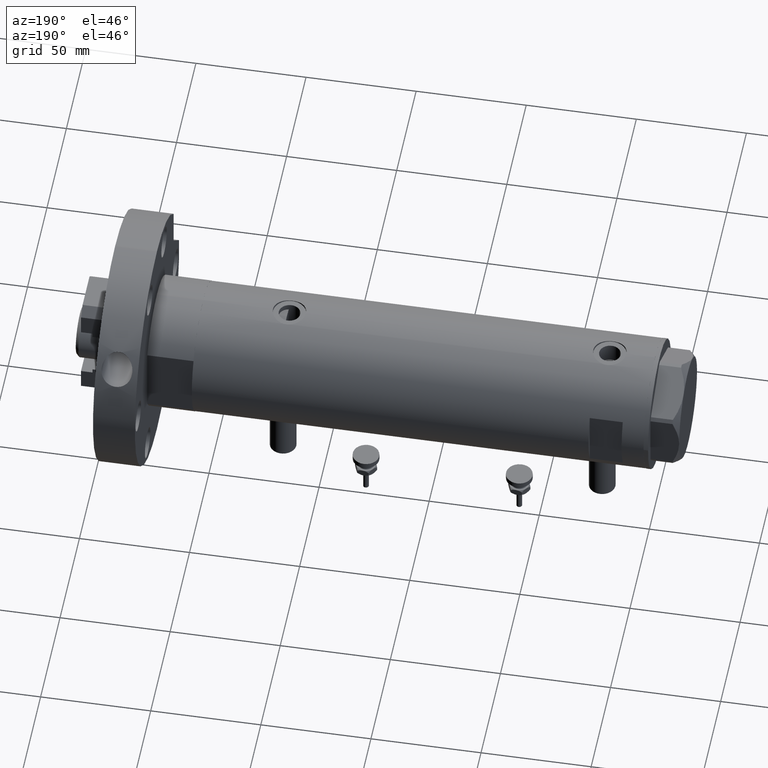
[diagram: clean part render]
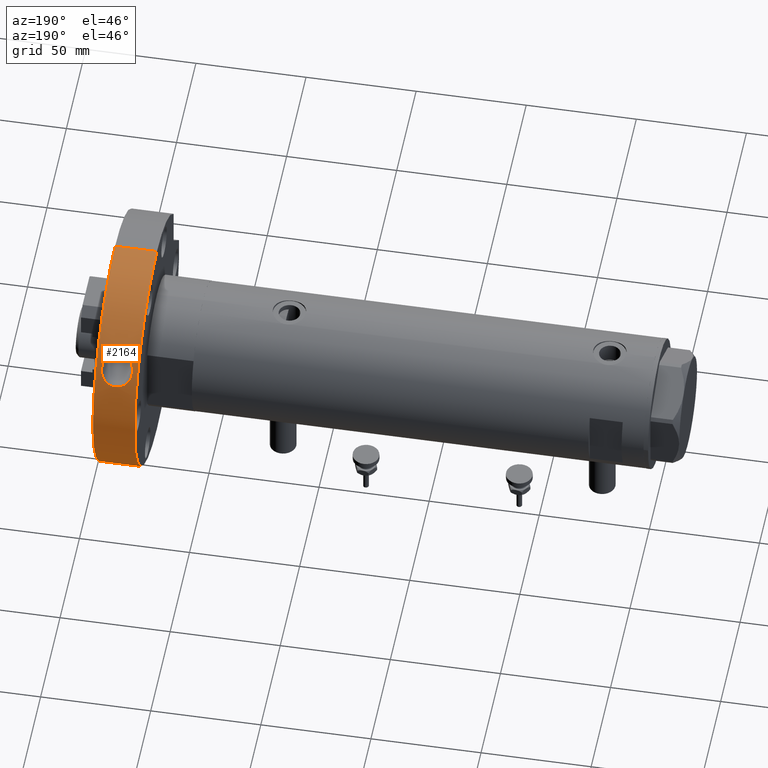
[diagram: same view with one face highlighted and labeled with its STEP entity id]
A machine part, auxiliary view. The second image highlights one B-rep face of the part: STEP entity #2164.
In plain terms, the highlighted cylindrical surface (partial cylindrical patch) has radius 57 mm, axis along (-1, -0, 0).
Its self-contained STEP definition (entity closure, byte-faithful):
#19 = CARTESIAN_POINT ( 'NONE',  ( 30.53995107737558001, -48.13067431506262750, 2.699709609212773032 ) ) ;
#20 = CARTESIAN_POINT ( 'NONE',  ( -57.00000000000000000, 0.000000000000000000, 19.00000000000000000 ) ) ;
#55 = CARTESIAN_POINT ( 'NONE',  ( 27.34814692522247981, -50.01136423115338658, 16.34589020612161292 ) ) ;
#211 = ORIENTED_EDGE ( 'NONE', *, *, #2208, .T. ) ;
#393 = CARTESIAN_POINT ( 'NONE',  ( 22.85873534068688429, -52.21656212836945343, 5.807502528299100852 ) ) ;
#513 = CARTESIAN_POINT ( 'NONE',  ( 35.71780161718379532, -44.42120325873273856, 8.257231265096653061 ) ) ;
#529 = DIRECTION ( 'NONE',  ( 0.000000000000000000, 0.000000000000000000, 1.000000000000000000 ) ) ;
#549 = CARTESIAN_POINT ( 'NONE',  ( 22.60549821113150415, -52.32623962976818177, 12.74884988705218447 ) ) ;
#553 = CARTESIAN_POINT ( 'NONE',  ( 35.54753094409378633, -44.55774354146507932, 11.51246087786898009 ) ) ;
#597 = CARTESIAN_POINT ( 'NONE',  ( 22.83988462326767888, -52.22480113453154615, 13.16198180661147354 ) ) ;
#601 = CARTESIAN_POINT ( 'NONE',  ( 35.39057712594161842, -44.68240000125437206, 7.061413026461376141 ) ) ;
#643 = CARTESIAN_POINT ( 'NONE',  ( 31.76536654374106305, -47.33068270814480627, 3.133106274072375186 ) ) ;
#676 = CARTESIAN_POINT ( 'NONE',  ( 30.96091106536544046, -47.86077750392103525, 2.820041164969578240 ) ) ;
#1015 = CARTESIAN_POINT ( 'NONE',  ( 28.61580118352872404, -49.29700212296323514, 2.499999999999999556 ) ) ;
#1026 = EDGE_CURVE ( 'NONE', #2813, #4006, #2396, .T. ) ;
#1093 = CARTESIAN_POINT ( 'NONE',  ( 21.87863796026251961, -52.63399395610100839, 8.504987851984909142 ) ) ;
#1227 = CARTESIAN_POINT ( 'NONE',  ( 34.74284817318735463, -45.18906961371806830, 13.26641101183793126 ) ) ;
#1269 = CARTESIAN_POINT ( 'NONE',  ( 24.20205133323140601, -51.60712088745781045, 14.76177537542764462 ) ) ;
#1274 = CARTESIAN_POINT ( 'NONE',  ( 35.38890971445781020, -44.68435462733069130, 11.97877297669115570 ) ) ;
#1318 = CARTESIAN_POINT ( 'NONE',  ( 33.74329508407183909, -45.93943000138825283, 4.514525018396740030 ) ) ;
#1615 = CARTESIAN_POINT ( 'NONE',  ( 26.11933157405916717, -50.66391815301326318, 3.040179230262288090 ) ) ;
#1700 = DIRECTION ( 'NONE',  ( -0.000000000000000000, -0.000000000000000000, -1.000000000000000000 ) ) ;
#1735 = CARTESIAN_POINT ( 'NONE',  ( 25.32606777048345492, -51.06501754454339448, 3.432686654822916239 ) ) ;
#1776 = CARTESIAN_POINT ( 'NONE',  ( 21.83585284418030525, -52.65164995674042814, 9.967530104571656224 ) ) ;
#1819 = CARTESIAN_POINT ( 'NONE',  ( 26.71960701942106198, -50.34996544369214178, 16.17958866556555719 ) ) ;
#1821 = CARTESIAN_POINT ( 'NONE',  ( 32.33035999521827364, -46.94462976603113447, 15.56265322181456945 ) ) ;
#1851 = VERTEX_POINT ( 'NONE', #3184 ) ;
#1863 = CARTESIAN_POINT ( 'NONE',  ( 27.13830391679345055, -50.12553121886133312, 16.29736605308010766 ) ) ;
#1892 = VERTEX_POINT ( 'NONE', #7642 ) ;
#1903 = CARTESIAN_POINT ( 'NONE',  ( 30.94859645401658810, -47.86873853806041268, 16.18385190983295985 ) ) ;
#1904 = DIRECTION ( 'NONE',  ( 0.000000000000000000, 0.000000000000000000, 1.000000000000000000 ) ) ;
#1977 = EDGE_LOOP ( 'NONE', ( #6146, #211 ) ) ;
#2137 = CARTESIAN_POINT ( 'NONE',  ( 57.00000000000000000, 6.980486755139912911E-15, 19.00000000000000000 ) ) ;
#2164 = ADVANCED_FACE ( 'NONE', ( #5494, #4856 ), #6748, .T. ) ;
#2208 = EDGE_CURVE ( 'NONE', #1892, #6694, #2331, .T. ) ;
#2249 = CARTESIAN_POINT ( 'NONE',  ( 23.42056746478218088, -51.96638907620206282, 5.044427461734966478 ) ) ;
#2331 = B_SPLINE_CURVE_WITH_KNOTS ( 'NONE', 3,
 ( #4229, #1015, #4941, #7507, #2401, #4275, #3563, #1615, #2959, #5573, #1735, #3607, #6117, #4975, #6835, #2249, #6156, #393, #4307, #3529, #6872, #1093, #3683, #7547, #1776, #4348, #6072, #2877, #5449, #8003, #549, #597, #3175, #3771, #7593, #4396, #1269, #5105, #3129, #5146, #2490, #6359, #3087, #1819, #1863, #55, #5774, #2614, #4437 ),
 .UNSPECIFIED., .F., .F.,
 ( 4, 2, 2, 2, 2, 2, 2, 2, 2, 2, 2, 2, 2, 1, 2, 2, 2, 2, 2, 2, 2, 2, 2, 2, 4 ),
 ( 0.02408476556850999359, 0.02480584272552282393, 0.02552691988253565081, 0.02696907419656131843, 0.02769015135357414878, 0.02841122851058698259, 0.02985338282461264675, 0.03057445998162548056, 0.03129553713863830744, 0.03273769145266397507, 0.03417984576668963576, 0.03562200008071529644, 0.03634307723772813026, 0.03706415439474096407, 0.03778523155175379095, 0.03850630870876661782, 0.03994846302279228545, 0.04066954017980511926, 0.04139061733681795308, 0.04211169449383077301, 0.04283277165084360683, 0.04427492596486926058, 0.04499600312188208745, 0.04571708027889491432, 0.04715923459292056114 ),
 .UNSPECIFIED. ) ;
#2396 = LINE ( 'NONE', #7590, #6078 ) ;
#2401 = CARTESIAN_POINT ( 'NONE',  ( 27.77047724555110619, -49.77809045276907085, 2.576501876810959324 ) ) ;
#2450 = CARTESIAN_POINT ( 'NONE',  ( 33.90116693679295423, -45.82299162908688572, 4.675178350585022180 ) ) ;
#2490 = CARTESIAN_POINT ( 'NONE',  ( 25.50058020563914951, -50.97942212603952328, 15.67693897252596713 ) ) ;
#2492 = CARTESIAN_POINT ( 'NONE',  ( 29.26003768813860262, -48.91937361899778836, 2.499999999999999112 ) ) ;
#2614 = CARTESIAN_POINT ( 'NONE',  ( 28.40225404471480530, -49.42217585338579511, 16.50000000000000355 ) ) ;
#2618 = CARTESIAN_POINT ( 'NONE',  ( 35.71080734604925766, -44.42682866383130147, 10.78085935617436952 ) ) ;
#2723 = ORIENTED_EDGE ( 'NONE', *, *, #5564, .T. ) ;
#2813 = VERTEX_POINT ( 'NONE', #2137 ) ;
#2877 = CARTESIAN_POINT ( 'NONE',  ( 22.08241703413474966, -52.54877065612812004, 11.39840868912841110 ) ) ;
#2959 = CARTESIAN_POINT ( 'NONE',  ( 25.91897460376192086, -50.76668221364457168, 3.127636840323338774 ) ) ;
#3087 = CARTESIAN_POINT ( 'NONE',  ( 26.51088924231333976, -50.46014220356917690, 16.11025720069375211 ) ) ;
#3129 = CARTESIAN_POINT ( 'NONE',  ( 24.73936207829587275, -51.35177061412355926, 15.18896549076075786 ) ) ;
#3132 = CARTESIAN_POINT ( 'NONE',  ( 30.53721702047090503, -48.13236022287743765, 16.30072227955669817 ) ) ;
#3175 = CARTESIAN_POINT ( 'NONE',  ( 23.25164259164114355, -52.04213353213880566, 13.74264666561707315 ) ) ;
#3176 = ORIENTED_EDGE ( 'NONE', *, *, #6311, .F. ) ;
#3178 = CARTESIAN_POINT ( 'NONE',  ( 32.89274836914412248, -46.55227068422379233, 3.799289476890531425 ) ) ;
#3184 = CARTESIAN_POINT ( 'NONE',  ( -57.00000000000000000, 0.000000000000000000, 0.000000000000000000 ) ) ;
#3222 = CARTESIAN_POINT ( 'NONE',  ( 35.30051604786073227, -44.75365703455266697, 6.831732694815459972 ) ) ;
#3255 = EDGE_LOOP ( 'NONE', ( #6610, #3176, #2723, #3937 ) ) ;
#3320 = AXIS2_PLACEMENT_3D ( 'NONE', #7641, #1904, #7004 ) ;
#3529 = CARTESIAN_POINT ( 'NONE',  ( 22.23504799713433755, -52.48473303078126406, 7.090116555777266072 ) ) ;
#3563 = CARTESIAN_POINT ( 'NONE',  ( 26.72662005529747375, -50.34775187020023424, 2.807689688092052105 ) ) ;
#3607 = CARTESIAN_POINT ( 'NONE',  ( 24.75029584890902257, -51.34788951407900726, 3.789897724629545550 ) ) ;
#3638 = CARTESIAN_POINT ( 'NONE',  ( 0.000000000000000000, 0.000000000000000000, 19.00000000000000000 ) ) ;
#3683 = CARTESIAN_POINT ( 'NONE',  ( 21.82614557076517769, -52.65566800177244033, 8.986519956493525640 ) ) ;
#3754 = CARTESIAN_POINT ( 'NONE',  ( 0.000000000000000000, 0.000000000000000000, 19.00000000000000000 ) ) ;
#3771 = CARTESIAN_POINT ( 'NONE',  ( 23.39865334956370901, -51.97625858493571371, 13.92890016091508265 ) ) ;
#3815 = CARTESIAN_POINT ( 'NONE',  ( 34.98321642824078737, -45.00267822667846929, 12.86244522570881088 ) ) ;
#3859 = CARTESIAN_POINT ( 'NONE',  ( 35.75868125000121012, -44.38826306542677003, 8.509547604823088918 ) ) ;
#3866 = CARTESIAN_POINT ( 'NONE',  ( -57.00000000000000000, 0.000000000000000000, 19.00000000000000000 ) ) ;
#3896 = CARTESIAN_POINT ( 'NONE',  ( 33.41529349653664127, -46.17855944617061681, 4.210940565491391396 ) ) ;
#3937 = ORIENTED_EDGE ( 'NONE', *, *, #8151, .T. ) ;
#4006 = VERTEX_POINT ( 'NONE', #8116 ) ;
#4229 = CARTESIAN_POINT ( 'NONE',  ( 28.82445616129993127, -49.17469600318133871, 2.500000000000000000 ) ) ;
#4275 = CARTESIAN_POINT ( 'NONE',  ( 27.13971171201926325, -50.12650826127234893, 2.692325844519847244 ) ) ;
#4307 = CARTESIAN_POINT ( 'NONE',  ( 22.62317735280666753, -52.31860479036789258, 6.217930636314440207 ) ) ;
#4348 = CARTESIAN_POINT ( 'NONE',  ( 21.88515949743512223, -52.63117428265919528, 10.45148438432320859 ) ) ;
#4359 = DIRECTION ( 'NONE',  ( -0.000000000000000000, -0.000000000000000000, -1.000000000000000000 ) ) ;
#4396 = CARTESIAN_POINT ( 'NONE',  ( 23.86660033461915376, -51.76311045036425185, 14.44697605592097212 ) ) ;
#4437 = CARTESIAN_POINT ( 'NONE',  ( 28.82445616129993127, -49.17469600318133871, 16.50000000000000000 ) ) ;
#4439 = CARTESIAN_POINT ( 'NONE',  ( 28.82445616129993127, -49.17469600318133871, 16.50000000000000000 ) ) ;
#4482 = CARTESIAN_POINT ( 'NONE',  ( 35.54571916929174336, -44.55908064488274789, 7.528890026604237562 ) ) ;
#4526 = CARTESIAN_POINT ( 'NONE',  ( 35.83804446753953243, -44.32419135610290084, 9.519495110145717476 ) ) ;
#4561 = CARTESIAN_POINT ( 'NONE',  ( 34.20412977693993639, -45.59729364466625157, 5.015470143275064352 ) ) ;
#4791 = AXIS2_PLACEMENT_3D ( 'NONE', #3754, #529, #5124 ) ;
#4856 = FACE_BOUND ( 'NONE', #1977, .T. ) ;
#4941 = CARTESIAN_POINT ( 'NONE',  ( 28.40589938319820007, -49.41825497551352697, 2.509308181741890298 ) ) ;
#4975 = CARTESIAN_POINT ( 'NONE',  ( 23.88911913582416346, -51.75271953319344220, 4.530636853782453066 ) ) ;
#5020 = CARTESIAN_POINT ( 'NONE',  ( 28.82445616129993127, -49.17469600318133871, 2.500000000000000000 ) ) ;
#5105 = CARTESIAN_POINT ( 'NONE',  ( 24.37667505289585179, -51.52492692485947856, 14.91013541732417202 ) ) ;
#5109 = CARTESIAN_POINT ( 'NONE',  ( 34.19681765691756681, -45.60367500408424490, 14.01120248679573344 ) ) ;
#5124 = DIRECTION ( 'NONE',  ( 1.000000000000000000, 0.000000000000000000, 0.000000000000000000 ) ) ;
#5146 = CARTESIAN_POINT ( 'NONE',  ( 24.92761208003575391, -51.26070057821633696, 15.31938895555614444 ) ) ;
#5449 = CARTESIAN_POINT ( 'NONE',  ( 22.23028947639360808, -52.48638556173913372, 11.86135826905956669 ) ) ;
#5494 = FACE_OUTER_BOUND ( 'NONE', #3255, .T. ) ;
#5564 = EDGE_CURVE ( 'NONE', #8189, #1851, #7009, .T. ) ;
#5573 = CARTESIAN_POINT ( 'NONE',  ( 25.52281504638207466, -50.96700088880847090, 3.323593174969620812 ) ) ;
#5653 = CARTESIAN_POINT ( 'NONE',  ( 34.76049447526646219, -45.17550493402999479, 5.760982555581668940 ) ) ;
#5665 = AXIS2_PLACEMENT_3D ( 'NONE', #3638, #1700, #8041 ) ;
#5687 = DIRECTION ( 'NONE',  ( -0.000000000000000000, -0.000000000000000000, -1.000000000000000000 ) ) ;
#5697 = CARTESIAN_POINT ( 'NONE',  ( 33.23247934504853873, -46.31162628805797254, 14.95595195716102310 ) ) ;
#5724 = CIRCLE ( 'NONE', #3320, 57.00000000000000000 ) ;
#5740 = CARTESIAN_POINT ( 'NONE',  ( 32.15238511280818301, -47.06834474940211521, 3.326128875716660271 ) ) ;
#5774 = CARTESIAN_POINT ( 'NONE',  ( 27.97890842132419209, -49.66297870214520316, 16.46188593116974630 ) ) ;
#5819 = CARTESIAN_POINT ( 'NONE',  ( 31.55167092744376589, -47.47157043548265420, 15.95048538508980762 ) ) ;
#5827 = CARTESIAN_POINT ( 'NONE',  ( 28.82445616129993127, -49.17469600318133871, 16.50000000000000000 ) ) ;
#5888 = B_SPLINE_CURVE_WITH_KNOTS ( 'NONE', 3,
 ( #4439, #6318, #7639, #3132, #1903, #5819, #7003, #7596, #1821, #6283, #5697, #7046, #5109, #1227, #3815, #1274, #553, #2618, #7096, #6363, #4526, #8261, #3859, #513, #7672, #4482, #601, #3222, #6970, #5653, #8305, #4561, #2450, #1318, #3896, #8216, #3178, #6450, #5740, #643, #676, #19, #7715, #2492, #5020 ),
 .UNSPECIFIED., .F., .F.,
 ( 4, 2, 2, 2, 2, 2, 2, 2, 2, 2, 1, 2, 2, 2, 2, 2, 2, 2, 2, 2, 2, 2, 4 ),
 ( 0.000000000000000000, 0.001505297848031869178, 0.003010595696063738357, 0.003763244620079677066, 0.004515893544095615775, 0.006021191392127498397, 0.007526489240159381020, 0.009031787088191262775, 0.01053708493622314626, 0.01128973386023908974, 0.01204238278425503496, 0.01279503170827097670, 0.01354768063228692018, 0.01430032955630286193, 0.01505297848031880541, 0.01655827632835068369, 0.01731092525236661503, 0.01806357417638254984, 0.01881622310039848464, 0.01956887202441441945, 0.02107416987244627865, 0.02257946772047813785, 0.02408476556850999359 ),
 .UNSPECIFIED. ) ;
#5985 = CIRCLE ( 'NONE', #4791, 57.00000000000000000 ) ;
#6072 = CARTESIAN_POINT ( 'NONE',  ( 21.95934393241937599, -52.60033640697714930, 10.93015346300710178 ) ) ;
#6078 = VECTOR ( 'NONE', #5687, 1000.000000000000000 ) ;
#6117 = CARTESIAN_POINT ( 'NONE',  ( 24.39055516853360217, -51.51928558548389248, 4.064100026452432068 ) ) ;
#6146 = ORIENTED_EDGE ( 'NONE', *, *, #7056, .T. ) ;
#6156 = CARTESIAN_POINT ( 'NONE',  ( 23.27260478202569871, -52.03276517858718364, 5.229983971405473220 ) ) ;
#6283 = CARTESIAN_POINT ( 'NONE',  ( 32.88375925337243899, -46.56028503485372738, 15.21931477795532572 ) ) ;
#6311 = EDGE_CURVE ( 'NONE', #8189, #2813, #5985, .T. ) ;
#6318 = CARTESIAN_POINT ( 'NONE',  ( 29.26514404840685657, -48.91638045239670163, 16.50000000000000355 ) ) ;
#6359 = CARTESIAN_POINT ( 'NONE',  ( 25.89703629303161847, -50.77948709595150945, 15.87358466694204218 ) ) ;
#6363 = CARTESIAN_POINT ( 'NONE',  ( 35.80940970890237907, -44.34735039088128872, 10.02432478498219304 ) ) ;
#6450 = CARTESIAN_POINT ( 'NONE',  ( 32.71005208120452323, -46.68087112852129650, 3.673329141902087702 ) ) ;
#6517 = VECTOR ( 'NONE', #4359, 1000.000000000000000 ) ;
#6610 = ORIENTED_EDGE ( 'NONE', *, *, #1026, .F. ) ;
#6694 = VERTEX_POINT ( 'NONE', #5827 ) ;
#6748 = CYLINDRICAL_SURFACE ( 'NONE', #5665, 57.00000000000000000 ) ;
#6835 = CARTESIAN_POINT ( 'NONE',  ( 23.72837445106946674, -51.82656480899985496, 4.695409394053601027 ) ) ;
#6872 = CARTESIAN_POINT ( 'NONE',  ( 22.08178021749764497, -52.54909229656823300, 7.558155316862258388 ) ) ;
#6970 = CARTESIAN_POINT ( 'NONE',  ( 34.99971379235670810, -44.98983262137862482, 6.168003383100604253 ) ) ;
#7003 = CARTESIAN_POINT ( 'NONE',  ( 31.75126552669414792, -47.33827674157504362, 15.86247891706246982 ) ) ;
#7004 = DIRECTION ( 'NONE',  ( 1.000000000000000000, 0.000000000000000000, 0.000000000000000000 ) ) ;
#7009 = LINE ( 'NONE', #3866, #6517 ) ;
#7046 = CARTESIAN_POINT ( 'NONE',  ( 33.88797300384531042, -45.83415427990870938, 14.35374879166339213 ) ) ;
#7056 = EDGE_CURVE ( 'NONE', #6694, #1892, #5888, .T. ) ;
#7096 = CARTESIAN_POINT ( 'NONE',  ( 35.75305297056564768, -44.39279799331822574, 10.52909610675759566 ) ) ;
#7507 = CARTESIAN_POINT ( 'NONE',  ( 27.98353468428519264, -49.65864306610337309, 2.547459964599188442 ) ) ;
#7547 = CARTESIAN_POINT ( 'NONE',  ( 21.82367098814484763, -52.65669364286446097, 9.721382425904835145 ) ) ;
#7590 = CARTESIAN_POINT ( 'NONE',  ( 57.00000000000000000, 6.980486755139912911E-15, 19.00000000000000000 ) ) ;
#7593 = CARTESIAN_POINT ( 'NONE',  ( 23.70577091693370875, -51.83690635343715769, 14.28053910728756470 ) ) ;
#7596 = CARTESIAN_POINT ( 'NONE',  ( 32.14080218287747215, -47.07466561166122432, 15.66840336688437851 ) ) ;
#7639 = CARTESIAN_POINT ( 'NONE',  ( 29.69548693253856442, -48.65617925628362883, 16.45878428174938790 ) ) ;
#7641 = CARTESIAN_POINT ( 'NONE',  ( 0.000000000000000000, 0.000000000000000000, 0.000000000000000000 ) ) ;
#7642 = CARTESIAN_POINT ( 'NONE',  ( 28.82445616129993127, -49.17469600318133871, 2.500000000000000000 ) ) ;
#7672 = CARTESIAN_POINT ( 'NONE',  ( 35.61139944816271452, -44.50654873905122599, 7.767924215423540169 ) ) ;
#7715 = CARTESIAN_POINT ( 'NONE',  ( 29.69019886169500566, -48.65945451178145476, 2.540304476284386048 ) ) ;
#8003 = CARTESIAN_POINT ( 'NONE',  ( 22.31651865659627632, -52.44982336329778860, 12.08927892057075582 ) ) ;
#8041 = DIRECTION ( 'NONE',  ( -1.000000000000000000, 0.000000000000000000, 0.000000000000000000 ) ) ;
#8116 = CARTESIAN_POINT ( 'NONE',  ( 57.00000000000000000, 6.980486755139912911E-15, 0.000000000000000000 ) ) ;
#8151 = EDGE_CURVE ( 'NONE', #1851, #4006, #5724, .T. ) ;
#8189 = VERTEX_POINT ( 'NONE', #20 ) ;
#8216 = CARTESIAN_POINT ( 'NONE',  ( 33.24516120556924648, -46.30125330429826391, 4.068014279449115200 ) ) ;
#8261 = CARTESIAN_POINT ( 'NONE',  ( 35.81221777270944528, -44.34508136089900177, 9.014550527863743667 ) ) ;
#8305 = CARTESIAN_POINT ( 'NONE',  ( 34.34985162745142162, -45.48755048059273776, 5.196024451594974281 ) ) ;